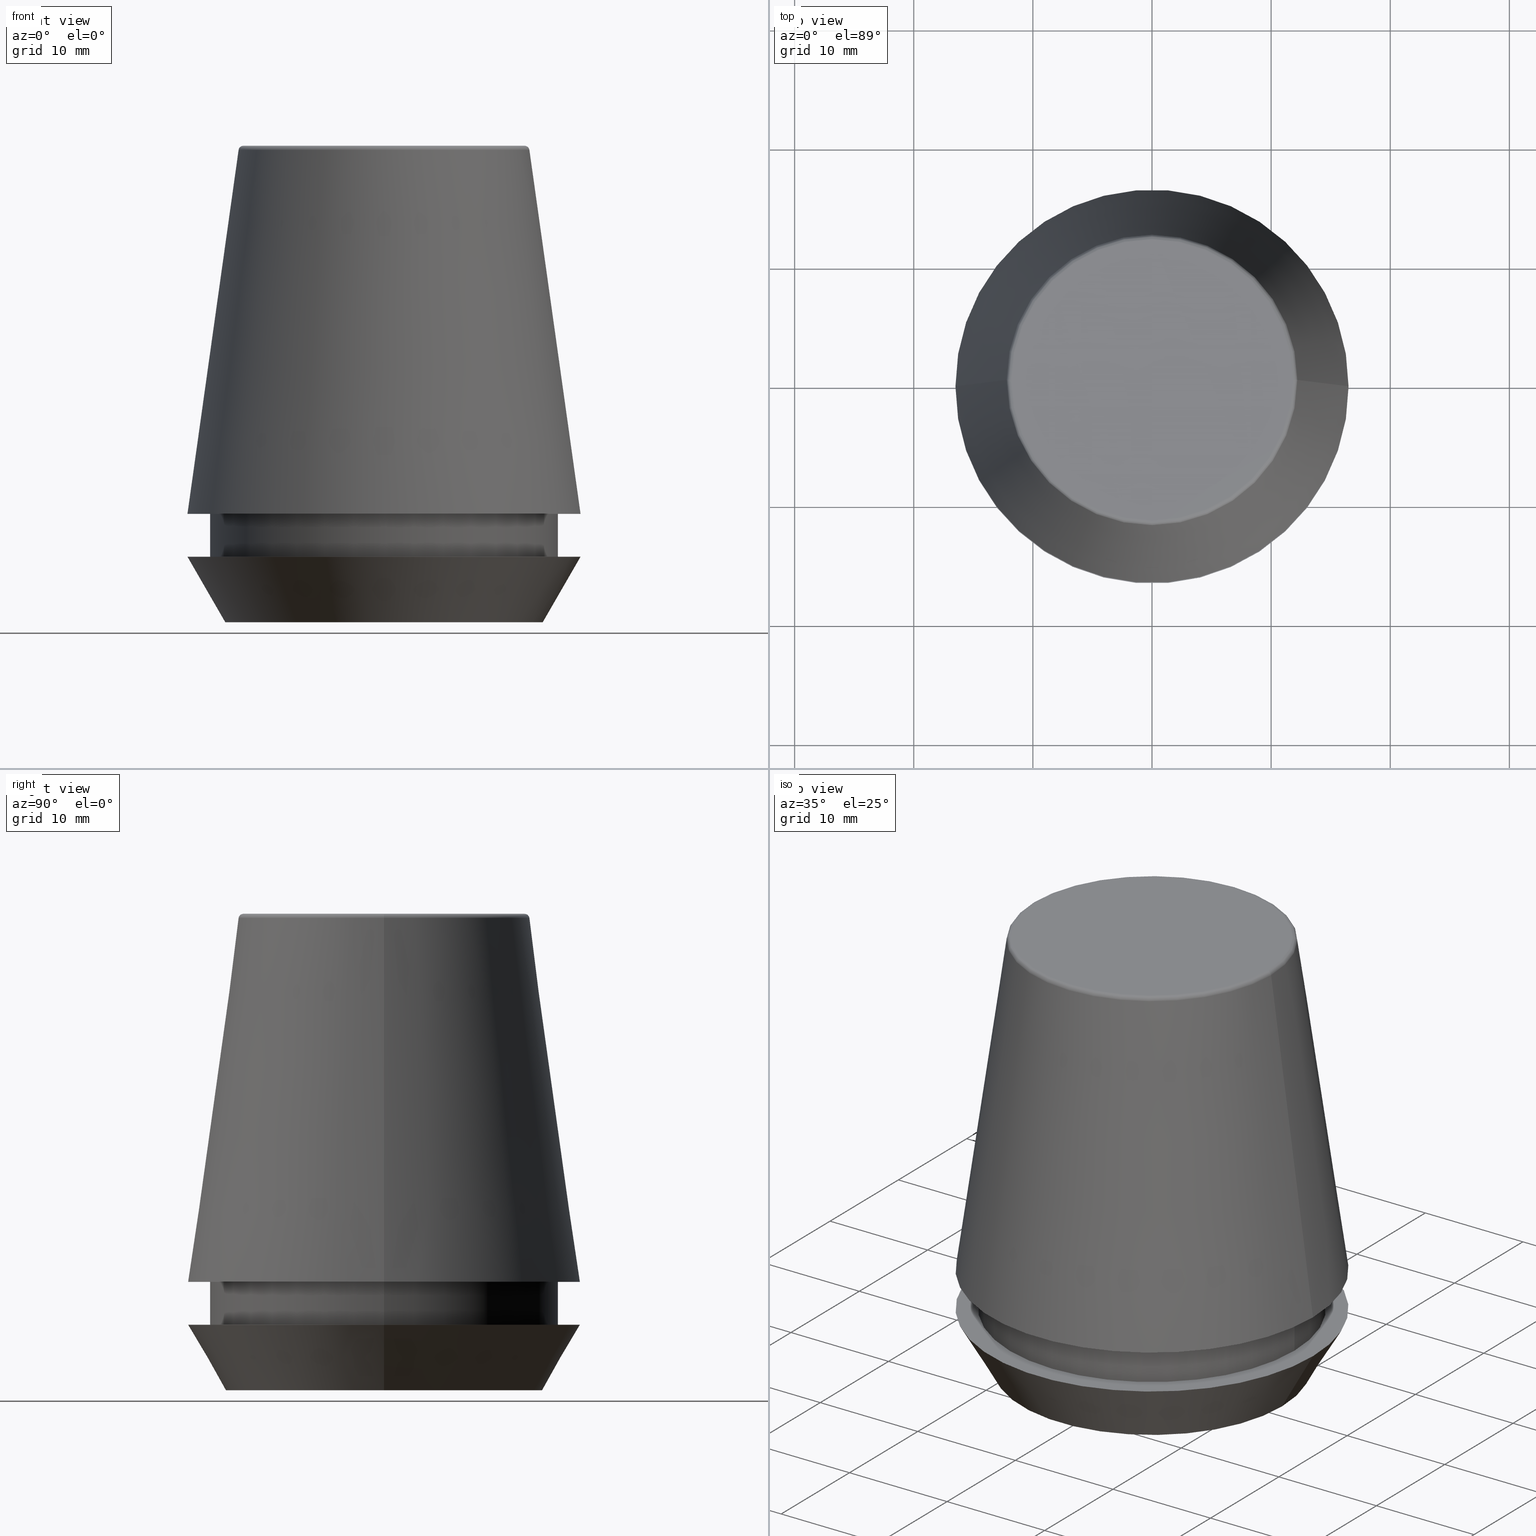
[diagram: canonical four-view strip — front | top / right | iso, engineering-drawing reading convention]
A machine part, canonical four-view strip (front | top / right | iso — engineering-drawing reading convention). The complete STEP part file that produces these views, byte-faithful:
ISO-10303-21;
HEADER;
FILE_DESCRIPTION (( 'STEP AP203' ),
    '1' );
FILE_NAME ('TAP COLLET ER 32G  5.5 X 4.3.STEP',
    '2019-04-09T10:48:47',
    ( '' ),
    ( '' ),
    'SwSTEP 2.0',
    'SolidWorks 2014',
    '' );
FILE_SCHEMA (( 'CONFIG_CONTROL_DESIGN' ));
ENDSEC;

DATA;
#1 = EDGE_CURVE ( 'NONE', #303, #203, #47, .T. ) ;
#2 = COORDINATED_UNIVERSAL_TIME_OFFSET ( 5, 30, .AHEAD. ) ;
#3 = DIRECTION ( 'NONE',  ( 1.000000000000000000, 0.0000000000000000000, 0.0000000000000000000 ) ) ;
#4 = EDGE_CURVE ( 'NONE', #188, #385, #56, .T. ) ;
#5 = DIRECTION ( 'NONE',  ( -0.0000000000000000000, -0.0000000000000000000, 1.000000000000000000 ) ) ;
#6 = CYLINDRICAL_SURFACE ( 'NONE', #242, 14.60000000000000000 ) ;
#7 = VERTEX_POINT ( 'NONE', #141 ) ;
#8 = DIRECTION ( 'NONE',  ( -0.0000000000000000000, -0.0000000000000000000, 1.000000000000000000 ) ) ;
#9 = DIRECTION ( 'NONE',  ( -0.0000000000000000000, -0.0000000000000000000, 1.000000000000000000 ) ) ;
#10 = EDGE_CURVE ( 'NONE', #193, #98, #40, .T. ) ;
#11 = ADVANCED_FACE ( 'NONE', ( #196 ), #320, .F. ) ;
#12 = APPLICATION_CONTEXT ( 'configuration controlled 3d designs of mechanical parts and assemblies' ) ;
#13 = LOCAL_TIME ( 16, 18, 47.00000000000000000, #99 ) ;
#14 = CARTESIAN_POINT ( 'NONE',  ( 0.0000000000000000000, 0.0000000000000000000, 9.099999999999997900 ) ) ;
#15 = EDGE_LOOP ( 'NONE', ( #88, #249 ) ) ;
#16 = CC_DESIGN_DATE_AND_TIME_ASSIGNMENT ( #246, #262, ( #386 ) ) ;
#17 = CARTESIAN_POINT ( 'NONE',  ( 0.0000000000000000000, 0.0000000000000000000, 40.00000000000000700 ) ) ;
#18 = ORIENTED_EDGE ( 'NONE', *, *, #48, .F. ) ;
#19 = FACE_OUTER_BOUND ( 'NONE', #116, .T. ) ;
#20 = VECTOR ( 'NONE', #250, 1000.000000000000000 ) ;
#21 = ORIENTED_EDGE ( 'NONE', *, *, #97, .T. ) ;
#22 = EDGE_CURVE ( 'NONE', #220, #227, #128, .T. ) ;
#23 = ORIENTED_EDGE ( 'NONE', *, *, #32, .F. ) ;
#24 = ADVANCED_FACE ( 'NONE', ( #109 ), #6, .T. ) ;
#25 = EDGE_CURVE ( 'NONE', #385, #188, #186, .T. ) ;
#26 = CARTESIAN_POINT ( 'NONE',  ( 0.0000000000000000000, 0.0000000000000000000, 0.0000000000000000000 ) ) ;
#27 = ORIENTED_EDGE ( 'NONE', *, *, #63, .F. ) ;
#28 = ORIENTED_EDGE ( 'NONE', *, *, #22, .F. ) ;
#29 = FACE_OUTER_BOUND ( 'NONE', #52, .T. ) ;
#30 = ORIENTED_EDGE ( 'NONE', *, *, #4, .T. ) ;
#31 = UNCERTAINTY_MEASURE_WITH_UNIT (LENGTH_MEASURE( 1.000000000000000100E-005 ), #365, 'distance_accuracy_value', 'NONE');
#32 = EDGE_CURVE ( 'NONE', #193, #188, #241, .T. ) ;
#33 = EDGE_LOOP ( 'NONE', ( #142, #341 ) ) ;
#34 = CARTESIAN_POINT ( 'NONE',  ( -14.60000000000000000, 1.787984326755135800E-015, 5.500000000000005300 ) ) ;
#35 = ADVANCED_FACE ( 'NONE', ( #61 ), #338, .T. ) ;
#36 = CARTESIAN_POINT ( 'NONE',  ( -14.60000000000000000, 1.787984326755135800E-015, 9.099999999999997900 ) ) ;
#37 = PERSON_AND_ORGANIZATION ( #364, #230 ) ;
#38 = DIRECTION ( 'NONE',  ( -0.4999999999999947300, 6.123233995736700700E-017, 0.8660254037844418200 ) ) ;
#39 = DIRECTION ( 'NONE',  ( -0.0000000000000000000, -0.0000000000000000000, 1.000000000000000000 ) ) ;
#40 = CIRCLE ( 'NONE', #228, 13.32457351945710200 ) ;
#41 = DIRECTION ( 'NONE',  ( -0.1391731009600586900, 0.0000000000000000000, -0.9902680687415712500 ) ) ;
#42 = EDGE_LOOP ( 'NONE', ( #357, #54, #21, #367 ) ) ;
#43 = CARTESIAN_POINT ( 'NONE',  ( 0.0000000000000000000, 0.0000000000000000000, 9.099999999999997900 ) ) ;
#44 = DIRECTION ( 'NONE',  ( 0.4999999999999947300, 0.0000000000000000000, 0.8660254037844418200 ) ) ;
#45 = LOCAL_TIME ( 16, 18, 47.00000000000000000, #121 ) ;
#46 = ORIENTED_EDGE ( 'NONE', *, *, #97, .F. ) ;
#47 = CIRCLE ( 'NONE', #326, 12.20600611160694300 ) ;
#48 = EDGE_CURVE ( 'NONE', #7, #108, #387, .T. ) ;
#49 = EDGE_LOOP ( 'NONE', ( #198, #377, #381, #27 ) ) ;
#50 = CLOSED_SHELL ( 'NONE', ( #154, #111, #35, #380, #11, #345, #165, #288, #24, #180, #339, #134 ) ) ;
#51 = EDGE_CURVE ( 'NONE', #203, #303, #172, .T. ) ;
#52 = EDGE_LOOP ( 'NONE', ( #286, #179, #62, #210 ) ) ;
#53 = CALENDAR_DATE ( 2019, 9, 4 ) ;
#54 = ORIENTED_EDGE ( 'NONE', *, *, #1, .F. ) ;
#55 = EDGE_CURVE ( 'NONE', #227, #220, #182, .T. ) ;
#56 = CIRCLE ( 'NONE', #283, 16.50000000000000000 ) ;
#57 = CARTESIAN_POINT ( 'NONE',  ( 13.32457351945710200, 0.0000000000000000000, 0.0000000000000000000 ) ) ;
#58 = CARTESIAN_POINT ( 'NONE',  ( -11.80989888411031400, 1.446295486667959300E-015, 39.60000000000000100 ) ) ;
#59 = VERTEX_POINT ( 'NONE', #342 ) ;
#60 = EDGE_CURVE ( 'NONE', #7, #59, #263, .T. ) ;
#61 = FACE_OUTER_BOUND ( 'NONE', #129, .T. ) ;
#62 = ORIENTED_EDGE ( 'NONE', *, *, #248, .T. ) ;
#63 = EDGE_CURVE ( 'NONE', #363, #59, #94, .T. ) ;
#64 = CARTESIAN_POINT ( 'NONE',  ( 0.0000000000000000000, 0.0000000000000000000, 39.60000000000000100 ) ) ;
#65 = DIRECTION ( 'NONE',  ( -0.0000000000000000000, -0.0000000000000000000, 1.000000000000000000 ) ) ;
#66 = DATE_AND_TIME ( #140, #224 ) ;
#67 = CARTESIAN_POINT ( 'NONE',  ( -16.50000000000000000, 2.020667218593133100E-015, 5.500000000000005300 ) ) ;
#68 = EDGE_CURVE ( 'NONE', #59, #363, #370, .T. ) ;
#69 = TOROIDAL_SURFACE ( 'NONE', #173, 11.80989888411031400, 0.4000000000000026900 ) ;
#70 = EDGE_CURVE ( 'NONE', #108, #7, #293, .T. ) ;
#71 = FACE_BOUND ( 'NONE', #123, .T. ) ;
#72 = CARTESIAN_POINT ( 'NONE',  ( 0.0000000000000000000, 0.0000000000000000000, 9.099999999999997900 ) ) ;
#73 = DIRECTION ( 'NONE',  ( -0.0000000000000000000, -0.0000000000000000000, 1.000000000000000000 ) ) ;
#74 = VECTOR ( 'NONE', #44, 999.9999999999998900 ) ;
#75 = MECHANICAL_CONTEXT ( 'NONE', #104, 'mechanical' ) ;
#76 = EDGE_CURVE ( 'NONE', #102, #290, #361, .T. ) ;
#77 = PERSON_AND_ORGANIZATION ( #364, #230 ) ;
#78 = CIRCLE ( 'NONE', #153, 0.4000000000000045200 ) ;
#79 = APPLICATION_PROTOCOL_DEFINITION ( 'international standard', 'config_control_design', 1994, #12 ) ;
#80 = PRODUCT_DEFINITION_FORMATION_WITH_SPECIFIED_SOURCE ( 'ANY', '', #175, .NOT_KNOWN. ) ;
#81 = DIRECTION ( 'NONE',  ( 1.000000000000000000, 0.0000000000000000000, 0.0000000000000000000 ) ) ;
#82 = APPROVAL_DATE_TIME ( #152, #352 ) ;
#83 = DIRECTION ( 'NONE',  ( -0.0000000000000000000, -0.0000000000000000000, 1.000000000000000000 ) ) ;
#84 = CC_DESIGN_DATE_AND_TIME_ASSIGNMENT ( #362, #132, ( #223 ) ) ;
#85 = ORIENTED_EDGE ( 'NONE', *, *, #366, .F. ) ;
#86 = DIRECTION ( 'NONE',  ( 1.000000000000000000, 0.0000000000000000000, 0.0000000000000000000 ) ) ;
#87 = CARTESIAN_POINT ( 'NONE',  ( 0.0000000000000000000, 0.0000000000000000000, 40.00000000000000700 ) ) ;
#88 = ORIENTED_EDGE ( 'NONE', *, *, #68, .T. ) ;
#89 = APPROVAL_PERSON_ORGANIZATION ( #161, #352, #138 ) ;
#90 = EDGE_CURVE ( 'NONE', #108, #363, #117, .T. ) ;
#91 = DIRECTION ( 'NONE',  ( -1.000000000000000000, 0.0000000000000000000, -0.0000000000000000000 ) ) ;
#92 = EDGE_CURVE ( 'NONE', #98, #193, #229, .T. ) ;
#93 = DIRECTION ( 'NONE',  ( 0.0000000000000000000, 0.0000000000000000000, -1.000000000000000000 ) ) ;
#94 = CIRCLE ( 'NONE', #216, 14.60000000000000000 ) ;
#95 = DIRECTION ( 'NONE',  ( 1.000000000000000000, 0.0000000000000000000, 0.0000000000000000000 ) ) ;
#96 = FACE_OUTER_BOUND ( 'NONE', #239, .T. ) ;
#97 = EDGE_CURVE ( 'NONE', #303, #220, #167, .T. ) ;
#98 = VERTEX_POINT ( 'NONE', #204 ) ;
#99 = COORDINATED_UNIVERSAL_TIME_OFFSET ( 5, 30, .AHEAD. ) ;
#100 = DIRECTION ( 'NONE',  ( -0.0000000000000000000, -0.0000000000000000000, 1.000000000000000000 ) ) ;
#101 = CARTESIAN_POINT ( 'NONE',  ( 0.0000000000000000000, 0.0000000000000000000, 39.60000000000000100 ) ) ;
#102 = VERTEX_POINT ( 'NONE', #264 ) ;
#103 = VECTOR ( 'NONE', #5, 1000.000000000000000 ) ;
#104 = APPLICATION_CONTEXT ( 'configuration controlled 3d designs of mechanical parts and assemblies' ) ;
#105 = CARTESIAN_POINT ( 'NONE',  ( 0.0000000000000000000, 0.0000000000000000000, 101.8074564848000400 ) ) ;
#106 = CARTESIAN_POINT ( 'NONE',  ( 0.0000000000000000000, 0.0000000000000000000, 0.0000000000000000000 ) ) ;
#107 = PERSON_AND_ORGANIZATION_ROLE ( 'classification_officer' ) ;
#108 = VERTEX_POINT ( 'NONE', #34 ) ;
#109 = FACE_OUTER_BOUND ( 'NONE', #49, .T. ) ;
#110 =( GEOMETRIC_REPRESENTATION_CONTEXT ( 3 ) GLOBAL_UNCERTAINTY_ASSIGNED_CONTEXT ( ( #31 ) ) GLOBAL_UNIT_ASSIGNED_CONTEXT ( ( #365, #251, #256 ) ) REPRESENTATION_CONTEXT ( 'NONE', 'WORKASPACE' ) );
#111 = ADVANCED_FACE ( 'NONE', ( #96 ), #214, .T. ) ;
#112 = AXIS2_PLACEMENT_3D ( 'NONE', #247, #273, #309 ) ;
#113 = PERSON_AND_ORGANIZATION ( #364, #230 ) ;
#114 = PERSON_AND_ORGANIZATION_ROLE ( 'creator' ) ;
#115 = DIRECTION ( 'NONE',  ( 0.1391731009600586900, 1.704378926181473100E-017, -0.9902680687415712500 ) ) ;
#116 = EDGE_LOOP ( 'NONE', ( #348, #177 ) ) ;
#117 = LINE ( 'NONE', #219, #20 ) ;
#118 = EDGE_LOOP ( 'NONE', ( #168, #211, #292, #23 ) ) ;
#119 = CARTESIAN_POINT ( 'NONE',  ( 0.0000000000000000000, 16.50000000000000000, 5.500000000000002700 ) ) ;
#120 = DIRECTION ( 'NONE',  ( 0.0000000000000000000, 0.0000000000000000000, -1.000000000000000000 ) ) ;
#121 = COORDINATED_UNIVERSAL_TIME_OFFSET ( 5, 30, .AHEAD. ) ;
#122 = PERSON_AND_ORGANIZATION ( #364, #230 ) ;
#123 = EDGE_LOOP ( 'NONE', ( #18, #265 ) ) ;
#124 = AXIS2_PLACEMENT_3D ( 'NONE', #296, #215, #3 ) ;
#125 = CONICAL_SURFACE ( 'NONE', #181, 13.32457351945710200, 0.5235987755982927100 ) ;
#126 = CARTESIAN_POINT ( 'NONE',  ( 0.0000000000000000000, 0.0000000000000000000, 0.0000000000000000000 ) ) ;
#127 = AXIS2_PLACEMENT_3D ( 'NONE', #17, #267, #384 ) ;
#128 = CIRCLE ( 'NONE', #261, 16.50032537154048700 ) ;
#129 = EDGE_LOOP ( 'NONE', ( #280, #324, #147, #174 ) ) ;
#130 = MANIFOLD_SOLID_BREP ( 'Revolve1', #50 ) ;
#131 = CARTESIAN_POINT ( 'NONE',  ( 14.60000000000000000, 0.0000000000000000000, 101.8074564848000400 ) ) ;
#132 = DATE_TIME_ROLE ( 'creation_date' ) ;
#133 = CARTESIAN_POINT ( 'NONE',  ( 0.0000000000000000000, 0.0000000000000000000, 5.500000000000005300 ) ) ;
#134 = ADVANCED_FACE ( 'NONE', ( #29 ), #69, .T. ) ;
#135 = CC_DESIGN_PERSON_AND_ORGANIZATION_ASSIGNMENT ( #122, #107, ( #386 ) ) ;
#136 = LOCAL_TIME ( 16, 18, 47.00000000000000000, #212 ) ;
#137 = DIRECTION ( 'NONE',  ( -1.000000000000000000, 0.0000000000000000000, -0.0000000000000000000 ) ) ;
#138 = APPROVAL_ROLE ( '' ) ;
#139 = DIRECTION ( 'NONE',  ( 1.000000000000000000, 0.0000000000000000000, 0.0000000000000000000 ) ) ;
#140 = CALENDAR_DATE ( 2019, 9, 4 ) ;
#141 = CARTESIAN_POINT ( 'NONE',  ( 14.60000000000000000, 0.0000000000000000000, 5.500000000000005300 ) ) ;
#142 = ORIENTED_EDGE ( 'NONE', *, *, #366, .T. ) ;
#143 = AXIS2_PLACEMENT_3D ( 'NONE', #119, #332, #91 ) ;
#144 = DIRECTION ( 'NONE',  ( 1.224646799147353200E-016, 1.000000000000000000, 0.0000000000000000000 ) ) ;
#145 = VECTOR ( 'NONE', #115, 1000.000000000000000 ) ;
#146 = AXIS2_PLACEMENT_3D ( 'NONE', #164, #93, #206 ) ;
#147 = ORIENTED_EDGE ( 'NONE', *, *, #68, .F. ) ;
#148 = CARTESIAN_POINT ( 'NONE',  ( 16.50032537154048700, 2.020707065114692300E-015, 9.099999999999997900 ) ) ;
#149 = PERSON_AND_ORGANIZATION_ROLE ( 'design_supplier' ) ;
#150 = PERSON_AND_ORGANIZATION ( #364, #230 ) ;
#151 = DESIGN_CONTEXT ( 'detailed design', #12, 'design' ) ;
#152 = DATE_AND_TIME ( #234, #317 ) ;
#153 = AXIS2_PLACEMENT_3D ( 'NONE', #329, #358, #178 ) ;
#154 = ADVANCED_FACE ( 'NONE', ( #291 ), #304, .T. ) ;
#155 = DIRECTION ( 'NONE',  ( -0.0000000000000000000, -0.0000000000000000000, 1.000000000000000000 ) ) ;
#156 = ORIENTED_EDGE ( 'NONE', *, *, #258, .T. ) ;
#157 = EDGE_LOOP ( 'NONE', ( #301, #359, #85, #252 ) ) ;
#158 = DIRECTION ( 'NONE',  ( 1.000000000000000000, 0.0000000000000000000, 0.0000000000000000000 ) ) ;
#159 = EDGE_LOOP ( 'NONE', ( #30, #375 ) ) ;
#160 = AXIS2_PLACEMENT_3D ( 'NONE', #300, #269, #209 ) ;
#161 = PERSON_AND_ORGANIZATION ( #364, #230 ) ;
#162 = DIRECTION ( 'NONE',  ( -0.0000000000000000000, -0.0000000000000000000, 1.000000000000000000 ) ) ;
#163 = AXIS2_PLACEMENT_3D ( 'NONE', #58, #144, #236 ) ;
#164 = CARTESIAN_POINT ( 'NONE',  ( 0.0000000000000000000, 0.0000000000000000000, 9.099999999999997900 ) ) ;
#165 = ADVANCED_FACE ( 'NONE', ( #314 ), #125, .T. ) ;
#166 = SECURITY_CLASSIFICATION_LEVEL ( 'unclassified' ) ;
#167 = LINE ( 'NONE', #368, #297 ) ;
#168 = ORIENTED_EDGE ( 'NONE', *, *, #10, .T. ) ;
#169 = FACE_OUTER_BOUND ( 'NONE', #42, .T. ) ;
#170 = DIRECTION ( 'NONE',  ( 1.000000000000000000, 0.0000000000000000000, 0.0000000000000000000 ) ) ;
#171 = AXIS2_PLACEMENT_3D ( 'NONE', #101, #307, #272 ) ;
#172 = CIRCLE ( 'NONE', #266, 12.20600611160694300 ) ;
#173 = AXIS2_PLACEMENT_3D ( 'NONE', #64, #65, #95 ) ;
#174 = ORIENTED_EDGE ( 'NONE', *, *, #60, .F. ) ;
#175 = PRODUCT ( 'TAP COLLET ER 32G  5.5 X 4.3', 'TAP COLLET ER 32G  5.5 X 4.3', '', ( #75 ) ) ;
#176 = PLANE ( 'NONE',  #143 ) ;
#177 = ORIENTED_EDGE ( 'NONE', *, *, #92, .F. ) ;
#178 = DIRECTION ( 'NONE',  ( 0.0000000000000000000, 0.0000000000000000000, -1.000000000000000000 ) ) ;
#179 = ORIENTED_EDGE ( 'NONE', *, *, #1, .T. ) ;
#180 = ADVANCED_FACE ( 'NONE', ( #243, #325 ), #328, .F. ) ;
#181 = AXIS2_PLACEMENT_3D ( 'NONE', #26, #208, #170 ) ;
#182 = CIRCLE ( 'NONE', #207, 16.50032537154048700 ) ;
#183 = CARTESIAN_POINT ( 'NONE',  ( -13.32457351945710200, 1.631789631060672300E-015, 0.0000000000000000000 ) ) ;
#184 = AXIS2_PLACEMENT_3D ( 'NONE', #310, #120, #336 ) ;
#185 = AXIS2_PLACEMENT_3D ( 'NONE', #126, #155, #255 ) ;
#186 = CIRCLE ( 'NONE', #245, 16.50000000000000000 ) ;
#187 = DIRECTION ( 'NONE',  ( -0.0000000000000000000, -0.0000000000000000000, 1.000000000000000000 ) ) ;
#188 = VERTEX_POINT ( 'NONE', #330 ) ;
#189 = DIRECTION ( 'NONE',  ( 1.000000000000000000, 0.0000000000000000000, 0.0000000000000000000 ) ) ;
#190 = EDGE_CURVE ( 'NONE', #303, #102, #202, .T. ) ;
#191 = CARTESIAN_POINT ( 'NONE',  ( 0.0000000000000000000, 0.0000000000000000000, 101.8074564848000400 ) ) ;
#192 = APPROVAL_DATE_TIME ( #274, #319 ) ;
#193 = VERTEX_POINT ( 'NONE', #57 ) ;
#194 = AXIS2_PLACEMENT_3D ( 'NONE', #87, #8, #217 ) ;
#195 = DIRECTION ( 'NONE',  ( 1.000000000000000000, 0.0000000000000000000, 0.0000000000000000000 ) ) ;
#196 = FACE_OUTER_BOUND ( 'NONE', #33, .T. ) ;
#197 = APPROVAL_STATUS ( 'not_yet_approved' ) ;
#198 = ORIENTED_EDGE ( 'NONE', *, *, #90, .F. ) ;
#199 = AXIS2_PLACEMENT_3D ( 'NONE', #268, #39, #275 ) ;
#200 = APPROVAL_PERSON_ORGANIZATION ( #285, #319, #233 ) ;
#201 = AXIS2_PLACEMENT_3D ( 'NONE', #72, #100, #158 ) ;
#202 = CIRCLE ( 'NONE', #163, 0.4000000000000028000 ) ;
#203 = VERTEX_POINT ( 'NONE', #270 ) ;
#204 = CARTESIAN_POINT ( 'NONE',  ( -13.32457351945710200, 1.826228424826902600E-015, 0.0000000000000000000 ) ) ;
#205 = CARTESIAN_POINT ( 'NONE',  ( 16.50032537154048700, 2.020707065114692300E-015, 9.099999999999997900 ) ) ;
#206 = DIRECTION ( 'NONE',  ( -1.000000000000000000, 0.0000000000000000000, 0.0000000000000000000 ) ) ;
#207 = AXIS2_PLACEMENT_3D ( 'NONE', #221, #73, #277 ) ;
#208 = DIRECTION ( 'NONE',  ( -0.0000000000000000000, -0.0000000000000000000, 1.000000000000000000 ) ) ;
#209 = DIRECTION ( 'NONE',  ( 1.000000000000000000, 0.0000000000000000000, 0.0000000000000000000 ) ) ;
#210 = ORIENTED_EDGE ( 'NONE', *, *, #76, .F. ) ;
#211 = ORIENTED_EDGE ( 'NONE', *, *, #349, .T. ) ;
#212 = COORDINATED_UNIVERSAL_TIME_OFFSET ( 5, 30, .AHEAD. ) ;
#213 = DIRECTION ( 'NONE',  ( 0.0000000000000000000, 0.0000000000000000000, 1.000000000000000000 ) ) ;
#214 = CONICAL_SURFACE ( 'NONE', #184, 16.50032537154048700, 0.1396263401595395900 ) ;
#215 = DIRECTION ( 'NONE',  ( 0.0000000000000000000, -0.0000000000000000000, 1.000000000000000000 ) ) ;
#216 = AXIS2_PLACEMENT_3D ( 'NONE', #43, #312, #276 ) ;
#217 = DIRECTION ( 'NONE',  ( 1.000000000000000000, 0.0000000000000000000, 0.0000000000000000000 ) ) ;
#218 = ORIENTED_EDGE ( 'NONE', *, *, #55, .F. ) ;
#219 = CARTESIAN_POINT ( 'NONE',  ( -14.60000000000000000, 1.787984326755135800E-015, 101.8074564848000400 ) ) ;
#220 = VERTEX_POINT ( 'NONE', #237 ) ;
#221 = CARTESIAN_POINT ( 'NONE',  ( 0.0000000000000000000, 0.0000000000000000000, 9.099999999999997900 ) ) ;
#222 = AXIS2_PLACEMENT_3D ( 'NONE', #105, #316, #189 ) ;
#223 = PRODUCT_DEFINITION ( 'UNKNOWN', '', #80, #151 ) ;
#224 = LOCAL_TIME ( 16, 18, 47.00000000000000000, #308 ) ;
#225 = APPROVAL_STATUS ( 'not_yet_approved' ) ;
#226 = APPROVAL_STATUS ( 'not_yet_approved' ) ;
#227 = VERTEX_POINT ( 'NONE', #205 ) ;
#228 = AXIS2_PLACEMENT_3D ( 'NONE', #106, #318, #195 ) ;
#229 = CIRCLE ( 'NONE', #185, 13.32457351945710200 ) ;
#230 = ORGANIZATION ( 'UNSPECIFIED', 'UNSPECIFIED', '' ) ;
#231 = PERSON_AND_ORGANIZATION_ROLE ( 'creator' ) ;
#232 = CC_DESIGN_APPROVAL ( #319, ( #80 ) ) ;
#233 = APPROVAL_ROLE ( '' ) ;
#234 = CALENDAR_DATE ( 2019, 9, 4 ) ;
#235 = AXIS2_PLACEMENT_3D ( 'NONE', #133, #9, #253 ) ;
#236 = DIRECTION ( 'NONE',  ( -1.000000000000000000, 1.224646799147352500E-016, 0.0000000000000000000 ) ) ;
#237 = CARTESIAN_POINT ( 'NONE',  ( -16.50032537154048700, 0.0000000000000000000, 9.099999999999997900 ) ) ;
#238 = PLANE ( 'NONE',  #124 ) ;
#239 = EDGE_LOOP ( 'NONE', ( #311, #156, #299, #46 ) ) ;
#240 = DIRECTION ( 'NONE',  ( 1.000000000000000000, 0.0000000000000000000, 0.0000000000000000000 ) ) ;
#241 = LINE ( 'NONE', #347, #74 ) ;
#242 = AXIS2_PLACEMENT_3D ( 'NONE', #191, #162, #81 ) ;
#243 = FACE_OUTER_BOUND ( 'NONE', #333, .T. ) ;
#244 = CARTESIAN_POINT ( 'NONE',  ( -12.20600611160694300, 0.0000000000000000000, 39.65566924038402900 ) ) ;
#245 = AXIS2_PLACEMENT_3D ( 'NONE', #371, #257, #281 ) ;
#246 = DATE_AND_TIME ( #327, #13 ) ;
#247 = CARTESIAN_POINT ( 'NONE',  ( 0.0000000000000000000, 0.0000000000000000000, 0.0000000000000000000 ) ) ;
#248 = EDGE_CURVE ( 'NONE', #203, #290, #78, .T. ) ;
#249 = ORIENTED_EDGE ( 'NONE', *, *, #63, .T. ) ;
#250 = DIRECTION ( 'NONE',  ( -0.0000000000000000000, -0.0000000000000000000, 1.000000000000000000 ) ) ;
#251 =( NAMED_UNIT ( * ) PLANE_ANGLE_UNIT ( ) SI_UNIT ( $, .RADIAN. ) );
#252 = ORIENTED_EDGE ( 'NONE', *, *, #248, .F. ) ;
#253 = DIRECTION ( 'NONE',  ( 1.000000000000000000, 0.0000000000000000000, 0.0000000000000000000 ) ) ;
#254 = CONICAL_SURFACE ( 'NONE', #112, 13.32457351945710200, 0.5235987755982927100 ) ;
#255 = DIRECTION ( 'NONE',  ( 1.000000000000000000, 0.0000000000000000000, 0.0000000000000000000 ) ) ;
#256 =( NAMED_UNIT ( * ) SI_UNIT ( $, .STERADIAN. ) SOLID_ANGLE_UNIT ( ) );
#257 = DIRECTION ( 'NONE',  ( -0.0000000000000000000, -0.0000000000000000000, 1.000000000000000000 ) ) ;
#258 = EDGE_CURVE ( 'NONE', #203, #227, #259, .T. ) ;
#259 = LINE ( 'NONE', #148, #145 ) ;
#260 = DIRECTION ( 'NONE',  ( 0.0000000000000000000, 0.0000000000000000000, -1.000000000000000000 ) ) ;
#261 = AXIS2_PLACEMENT_3D ( 'NONE', #14, #373, #284 ) ;
#262 = DATE_TIME_ROLE ( 'classification_date' ) ;
#263 = LINE ( 'NONE', #131, #103 ) ;
#264 = CARTESIAN_POINT ( 'NONE',  ( -11.80989888411031400, 1.470550059081603400E-015, 40.00000000000000700 ) ) ;
#265 = ORIENTED_EDGE ( 'NONE', *, *, #70, .F. ) ;
#266 = AXIS2_PLACEMENT_3D ( 'NONE', #369, #187, #278 ) ;
#267 = DIRECTION ( 'NONE',  ( -0.0000000000000000000, -0.0000000000000000000, 1.000000000000000000 ) ) ;
#268 = CARTESIAN_POINT ( 'NONE',  ( 0.0000000000000000000, 0.0000000000000000000, 5.500000000000005300 ) ) ;
#269 = DIRECTION ( 'NONE',  ( 0.0000000000000000000, -0.0000000000000000000, 1.000000000000000000 ) ) ;
#270 = CARTESIAN_POINT ( 'NONE',  ( 12.20600611160694300, 1.757755848304969800E-015, 39.65566924038402900 ) ) ;
#271 = CARTESIAN_POINT ( 'NONE',  ( 11.80989888411031400, 0.0000000000000000000, 40.00000000000000700 ) ) ;
#272 = DIRECTION ( 'NONE',  ( 1.000000000000000000, 0.0000000000000000000, 0.0000000000000000000 ) ) ;
#273 = DIRECTION ( 'NONE',  ( -0.0000000000000000000, -0.0000000000000000000, 1.000000000000000000 ) ) ;
#274 = DATE_AND_TIME ( #355, #45 ) ;
#275 = DIRECTION ( 'NONE',  ( 1.000000000000000000, 0.0000000000000000000, 0.0000000000000000000 ) ) ;
#276 = DIRECTION ( 'NONE',  ( 1.000000000000000000, 0.0000000000000000000, 0.0000000000000000000 ) ) ;
#277 = DIRECTION ( 'NONE',  ( 1.000000000000000000, 0.0000000000000000000, 0.0000000000000000000 ) ) ;
#278 = DIRECTION ( 'NONE',  ( 1.000000000000000000, 0.0000000000000000000, 0.0000000000000000000 ) ) ;
#279 = AXIS2_PLACEMENT_3D ( 'NONE', #376, #260, #137 ) ;
#280 = ORIENTED_EDGE ( 'NONE', *, *, #48, .T. ) ;
#281 = DIRECTION ( 'NONE',  ( 1.000000000000000000, 0.0000000000000000000, 0.0000000000000000000 ) ) ;
#282 = FACE_OUTER_BOUND ( 'NONE', #118, .T. ) ;
#283 = AXIS2_PLACEMENT_3D ( 'NONE', #322, #83, #86 ) ;
#284 = DIRECTION ( 'NONE',  ( 1.000000000000000000, 0.0000000000000000000, 0.0000000000000000000 ) ) ;
#285 = PERSON_AND_ORGANIZATION ( #364, #230 ) ;
#286 = ORIENTED_EDGE ( 'NONE', *, *, #190, .F. ) ;
#287 = APPROVAL_ROLE ( '' ) ;
#288 = ADVANCED_FACE ( 'NONE', ( #71, #313 ), #176, .F. ) ;
#289 = APPROVAL ( #225, 'UNSPECIFIED' ) ;
#290 = VERTEX_POINT ( 'NONE', #271 ) ;
#291 = FACE_OUTER_BOUND ( 'NONE', #157, .T. ) ;
#292 = ORIENTED_EDGE ( 'NONE', *, *, #4, .F. ) ;
#293 = CIRCLE ( 'NONE', #199, 14.60000000000000000 ) ;
#294 = PERSON_AND_ORGANIZATION ( #364, #230 ) ;
#295 = CC_DESIGN_PERSON_AND_ORGANIZATION_ASSIGNMENT ( #150, #344, ( #175 ) ) ;
#296 = CARTESIAN_POINT ( 'NONE',  ( 0.0000000000000000000, 0.0000000000000000000, 0.0000000000000000000 ) ) ;
#297 = VECTOR ( 'NONE', #41, 1000.000000000000000 ) ;
#298 = AXIS2_PLACEMENT_3D ( 'NONE', #354, #213, #240 ) ;
#299 = ORIENTED_EDGE ( 'NONE', *, *, #55, .T. ) ;
#300 = CARTESIAN_POINT ( 'NONE',  ( 0.0000000000000000000, 16.50032537154048700, 9.099999999999999600 ) ) ;
#301 = ORIENTED_EDGE ( 'NONE', *, *, #51, .T. ) ;
#302 = ADVANCED_BREP_SHAPE_REPRESENTATION ( 'TAP COLLET ER 32G  5.5 X 4.3', ( #130, #298 ), #110 ) ;
#303 = VERTEX_POINT ( 'NONE', #244 ) ;
#304 = TOROIDAL_SURFACE ( 'NONE', #171, 11.80989888411031400, 0.4000000000000026900 ) ;
#305 = CC_DESIGN_APPROVAL ( #289, ( #223 ) ) ;
#306 = ORIENTED_EDGE ( 'NONE', *, *, #92, .T. ) ;
#307 = DIRECTION ( 'NONE',  ( -0.0000000000000000000, -0.0000000000000000000, 1.000000000000000000 ) ) ;
#308 = COORDINATED_UNIVERSAL_TIME_OFFSET ( 5, 30, .AHEAD. ) ;
#309 = DIRECTION ( 'NONE',  ( 1.000000000000000000, 0.0000000000000000000, 0.0000000000000000000 ) ) ;
#310 = CARTESIAN_POINT ( 'NONE',  ( 0.0000000000000000000, 0.0000000000000000000, 9.099999999999997900 ) ) ;
#311 = ORIENTED_EDGE ( 'NONE', *, *, #51, .F. ) ;
#312 = DIRECTION ( 'NONE',  ( -0.0000000000000000000, -0.0000000000000000000, 1.000000000000000000 ) ) ;
#313 = FACE_OUTER_BOUND ( 'NONE', #159, .T. ) ;
#314 = FACE_OUTER_BOUND ( 'NONE', #360, .T. ) ;
#315 = SHAPE_DEFINITION_REPRESENTATION ( #374, #302 ) ;
#316 = DIRECTION ( 'NONE',  ( -0.0000000000000000000, -0.0000000000000000000, 1.000000000000000000 ) ) ;
#317 = LOCAL_TIME ( 16, 18, 47.00000000000000000, #2 ) ;
#318 = DIRECTION ( 'NONE',  ( -0.0000000000000000000, -0.0000000000000000000, 1.000000000000000000 ) ) ;
#319 = APPROVAL ( #226, 'UNSPECIFIED' ) ;
#320 = PLANE ( 'NONE',  #279 ) ;
#321 = ORIENTED_EDGE ( 'NONE', *, *, #349, .F. ) ;
#322 = CARTESIAN_POINT ( 'NONE',  ( 0.0000000000000000000, 0.0000000000000000000, 5.500000000000005300 ) ) ;
#323 = DIRECTION ( 'NONE',  ( -0.0000000000000000000, -0.0000000000000000000, 1.000000000000000000 ) ) ;
#324 = ORIENTED_EDGE ( 'NONE', *, *, #90, .T. ) ;
#325 = FACE_BOUND ( 'NONE', #15, .T. ) ;
#326 = AXIS2_PLACEMENT_3D ( 'NONE', #378, #323, #139 ) ;
#327 = CALENDAR_DATE ( 2019, 9, 4 ) ;
#328 = PLANE ( 'NONE',  #160 ) ;
#329 = CARTESIAN_POINT ( 'NONE',  ( 11.80989888411031400, 0.0000000000000000000, 39.60000000000000100 ) ) ;
#330 = CARTESIAN_POINT ( 'NONE',  ( 16.50000000000000000, 0.0000000000000000000, 5.500000000000005300 ) ) ;
#331 = CONICAL_SURFACE ( 'NONE', #146, 16.50032537154048700, 0.1396263401595395900 ) ;
#332 = DIRECTION ( 'NONE',  ( 0.0000000000000000000, 0.0000000000000000000, -1.000000000000000000 ) ) ;
#333 = EDGE_LOOP ( 'NONE', ( #28, #218 ) ) ;
#334 = CC_DESIGN_PERSON_AND_ORGANIZATION_ASSIGNMENT ( #113, #231, ( #80 ) ) ;
#335 = ORIENTED_EDGE ( 'NONE', *, *, #32, .T. ) ;
#336 = DIRECTION ( 'NONE',  ( -1.000000000000000000, 0.0000000000000000000, 0.0000000000000000000 ) ) ;
#337 = CC_DESIGN_APPROVAL ( #352, ( #386 ) ) ;
#338 = CYLINDRICAL_SURFACE ( 'NONE', #222, 14.60000000000000000 ) ;
#339 = ADVANCED_FACE ( 'NONE', ( #169 ), #331, .T. ) ;
#340 = CC_DESIGN_PERSON_AND_ORGANIZATION_ASSIGNMENT ( #294, #114, ( #223 ) ) ;
#341 = ORIENTED_EDGE ( 'NONE', *, *, #76, .T. ) ;
#342 = CARTESIAN_POINT ( 'NONE',  ( 14.60000000000000000, 0.0000000000000000000, 9.099999999999997900 ) ) ;
#343 = CC_DESIGN_PERSON_AND_ORGANIZATION_ASSIGNMENT ( #37, #149, ( #80 ) ) ;
#344 = PERSON_AND_ORGANIZATION_ROLE ( 'design_owner' ) ;
#345 = ADVANCED_FACE ( 'NONE', ( #19 ), #238, .F. ) ;
#346 = CC_DESIGN_SECURITY_CLASSIFICATION ( #386, ( #80 ) ) ;
#347 = CARTESIAN_POINT ( 'NONE',  ( 13.32457351945710200, 0.0000000000000000000, 0.0000000000000000000 ) ) ;
#348 = ORIENTED_EDGE ( 'NONE', *, *, #10, .F. ) ;
#349 = EDGE_CURVE ( 'NONE', #98, #385, #350, .T. ) ;
#350 = LINE ( 'NONE', #183, #351 ) ;
#351 = VECTOR ( 'NONE', #38, 999.9999999999998900 ) ;
#352 = APPROVAL ( #197, 'UNSPECIFIED' ) ;
#353 = ORIENTED_EDGE ( 'NONE', *, *, #25, .F. ) ;
#354 = CARTESIAN_POINT ( 'NONE',  ( 0.0000000000000000000, 0.0000000000000000000, 0.0000000000000000000 ) ) ;
#355 = CALENDAR_DATE ( 2019, 9, 4 ) ;
#356 = PRODUCT_RELATED_PRODUCT_CATEGORY ( 'detail', '', ( #175 ) ) ;
#357 = ORIENTED_EDGE ( 'NONE', *, *, #258, .F. ) ;
#358 = DIRECTION ( 'NONE',  ( 0.0000000000000000000, -1.000000000000000000, 0.0000000000000000000 ) ) ;
#359 = ORIENTED_EDGE ( 'NONE', *, *, #190, .T. ) ;
#360 = EDGE_LOOP ( 'NONE', ( #321, #306, #335, #353 ) ) ;
#361 = CIRCLE ( 'NONE', #194, 11.80989888411031400 ) ;
#362 = DATE_AND_TIME ( #53, #136 ) ;
#363 = VERTEX_POINT ( 'NONE', #36 ) ;
#364 = PERSON ( 'UNSPECIFIED', 'UNSPECIFIED', 'UNSPECIFIED', ('UNSPECIFIED'), ('UNSPECIFIED'), ('UNSPECIFIED') ) ;
#365 =( LENGTH_UNIT ( ) NAMED_UNIT ( * ) SI_UNIT ( .MILLI., .METRE. ) );
#366 = EDGE_CURVE ( 'NONE', #290, #102, #382, .T. ) ;
#367 = ORIENTED_EDGE ( 'NONE', *, *, #22, .T. ) ;
#368 = CARTESIAN_POINT ( 'NONE',  ( -16.50032537154048700, 0.0000000000000000000, 9.099999999999997900 ) ) ;
#369 = CARTESIAN_POINT ( 'NONE',  ( 0.0000000000000000000, 0.0000000000000000000, 39.65566924038402900 ) ) ;
#370 = CIRCLE ( 'NONE', #201, 14.60000000000000000 ) ;
#371 = CARTESIAN_POINT ( 'NONE',  ( 0.0000000000000000000, 0.0000000000000000000, 5.500000000000005300 ) ) ;
#372 = APPROVAL_DATE_TIME ( #66, #289 ) ;
#373 = DIRECTION ( 'NONE',  ( -0.0000000000000000000, -0.0000000000000000000, 1.000000000000000000 ) ) ;
#374 = PRODUCT_DEFINITION_SHAPE ( 'NONE', 'NONE',  #223 ) ;
#375 = ORIENTED_EDGE ( 'NONE', *, *, #25, .T. ) ;
#376 = CARTESIAN_POINT ( 'NONE',  ( 0.0000000000000000000, 11.80989888411031400, 40.00000000000000700 ) ) ;
#377 = ORIENTED_EDGE ( 'NONE', *, *, #70, .T. ) ;
#378 = CARTESIAN_POINT ( 'NONE',  ( 0.0000000000000000000, 0.0000000000000000000, 39.65566924038402900 ) ) ;
#379 = APPLICATION_PROTOCOL_DEFINITION ( 'international standard', 'config_control_design', 1994, #104 ) ;
#380 = ADVANCED_FACE ( 'NONE', ( #282 ), #254, .T. ) ;
#381 = ORIENTED_EDGE ( 'NONE', *, *, #60, .T. ) ;
#382 = CIRCLE ( 'NONE', #127, 11.80989888411031400 ) ;
#383 = APPROVAL_PERSON_ORGANIZATION ( #77, #289, #287 ) ;
#384 = DIRECTION ( 'NONE',  ( 1.000000000000000000, 0.0000000000000000000, 0.0000000000000000000 ) ) ;
#385 = VERTEX_POINT ( 'NONE', #67 ) ;
#386 = SECURITY_CLASSIFICATION ( '', '', #166 ) ;
#387 = CIRCLE ( 'NONE', #235, 14.60000000000000000 ) ;
ENDSEC;
END-ISO-10303-21;
